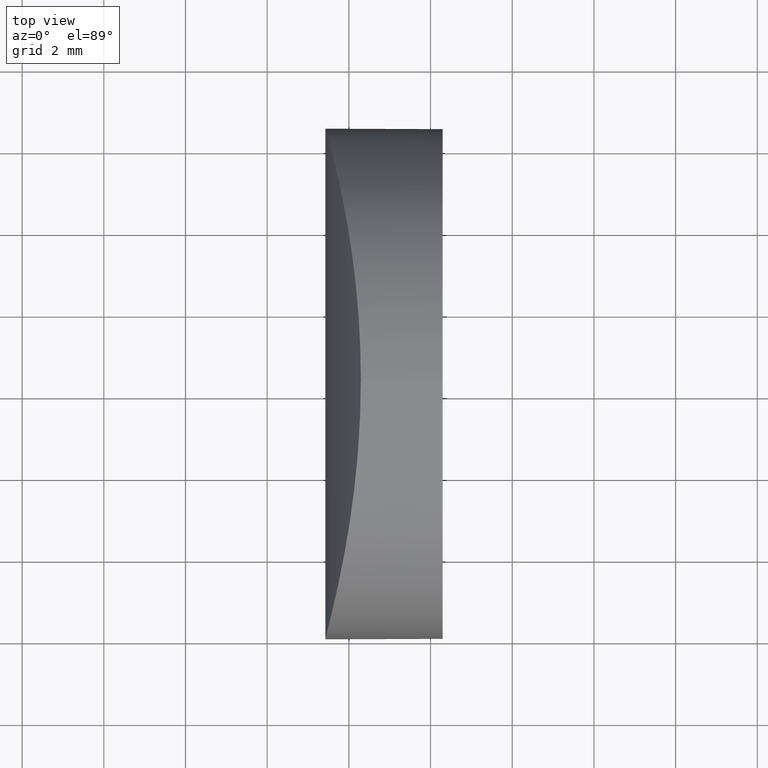
[diagram: clean part render]
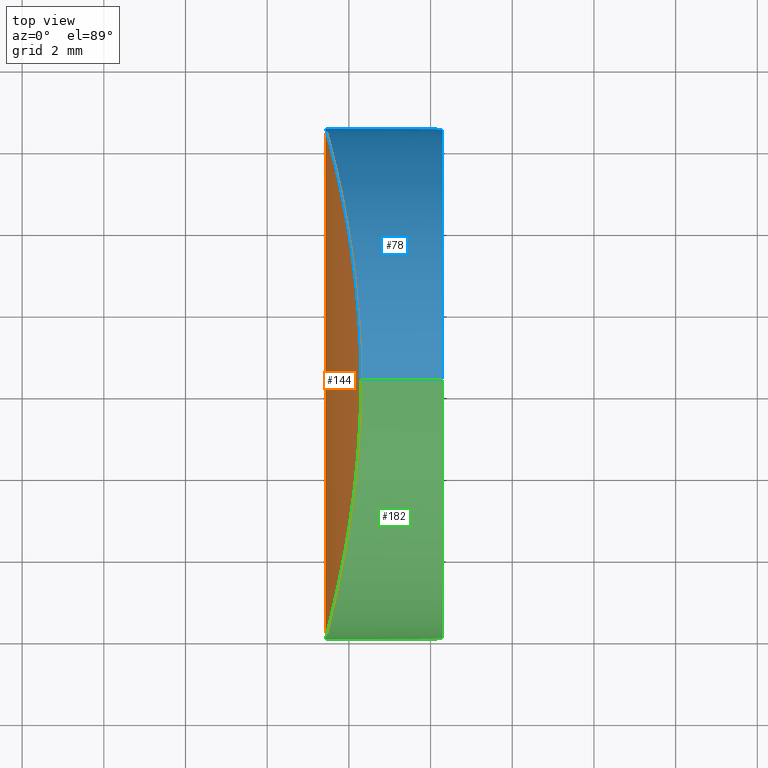
[diagram: same view with three faces highlighted in distinct colors, each labeled with its STEP entity id]
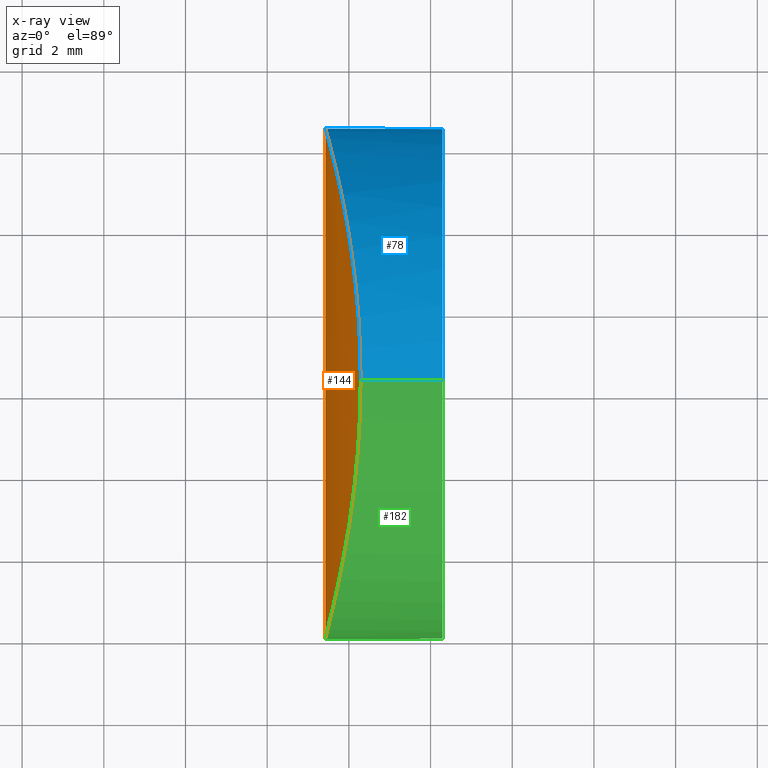
[diagram: x-ray of the same camera — body ghosted, the three highlighted faces saturated]
A machine part, top view with three faces highlighted in distinct colors.
The next image is the same camera in x-ray (body ghosted, the three faces saturated) — at least one of them is partly hidden behind the body in this view.
Their STEP definitions:

[orange] entity #144 — the highlighted cylindrical surface (partial cylindrical patch) has radius 22.93 mm, axis along (-0, -1, -0).
#1 = CARTESIAN_POINT ( 'NONE',  ( -18.20133006905662000, 10.95009780847321900, 4.124730403592017100 ) ) ;
#3 = CARTESIAN_POINT ( 'NONE',  ( -18.40891683051961500, 11.86299368340000300, -2.778872419111120300 ) ) ;
#4 = CARTESIAN_POINT ( 'NONE',  ( -17.75202215429834100, 4.818976478126216100, -6.087463154470602200 ) ) ;
#5 = CARTESIAN_POINT ( 'NONE',  ( -17.71827818553345700, 7.072273054197086000, -6.209117825791605800 ) ) ;
#7 = CARTESIAN_POINT ( 'NONE',  ( -18.57478787720902600, 2.857239324197803000E-005, 0.4151895861862338600 ) ) ;
#15 = CARTESIAN_POINT ( 'NONE',  ( -17.92563604326127100, 9.384558899289801900, -5.422464547221747600 ) ) ;
#18 = CARTESIAN_POINT ( 'NONE',  ( -18.51748007760547300, 12.28660832705903000, -1.632134371557496300 ) ) ;
#19 = CARTESIAN_POINT ( 'NONE',  ( -17.75151794503539500, 4.827065939892804600, 6.089289642798375400 ) ) ;
#22 = CARTESIAN_POINT ( 'NONE',  ( -18.25684415268590800, 11.20967860826354300, 3.808662286717492400 ) ) ;
#23 = DIRECTION ( 'NONE',  ( 0.0000000000000000000, 0.0000000000000000000, -1.000000000000000000 ) ) ;
#24 = CARTESIAN_POINT ( 'NONE',  ( -17.76522132626254400, 7.871500529980274900, -6.039495593501661700 ) ) ;
#26 = CARTESIAN_POINT ( 'NONE',  ( -17.70658163093128900, 5.835192807067590700, -6.250000000000002700 ) ) ;
#27 = CARTESIAN_POINT ( 'NONE',  ( -17.70658163093128200, 6.664807192572944000, -6.250000000000000900 ) ) ;
#32 = CARTESIAN_POINT ( 'NONE',  ( -18.51744880209323100, 0.2135100843477229200, 1.632570613190364600 ) ) ;
#34 = CARTESIAN_POINT ( 'NONE',  ( -18.08818377686607800, 2.125990214488198100, 4.700727922411143600 ) ) ;
#37 = CARTESIAN_POINT ( 'NONE',  ( -17.70658163093128600, 6.250000000000000900, 6.250000000000000000 ) ) ;
#38 = CARTESIAN_POINT ( 'NONE',  ( -17.79753469854707900, 8.264914197109819200, -5.919872614418112600 ) ) ;
#41 = CARTESIAN_POINT ( 'NONE',  ( -17.81679349157646900, 4.034175357108001200, -5.847558018510195400 ) ) ;
#43 = CARTESIAN_POINT ( 'NONE',  ( -18.48609466164993300, 0.3334225411677921300, 2.024502033207922200 ) ) ;
#44 = CARTESIAN_POINT ( 'NONE',  ( -17.81618034062731900, 4.040214221451774000, 5.849887174370714100 ) ) ;
#46 = CARTESIAN_POINT ( 'NONE',  ( -18.40923806060087000, 0.6356858768039392900, -2.776585817879675800 ) ) ;
#47 = CARTESIAN_POINT ( 'NONE',  ( -17.81619185522884100, 8.459901985888020400, -5.849843649655709600 ) ) ;
#49 = CARTESIAN_POINT ( 'NONE',  ( -17.87744075296714600, 9.026533572609526600, -5.614330892525699400 ) ) ;
#50 = CARTESIAN_POINT ( 'NONE',  ( -17.87773705394244000, 9.028567129950822300, 5.613136494291686600 ) ) ;
#51 = CARTESIAN_POINT ( 'NONE',  ( -17.70658163093128600, 6.250000000000000000, -6.250000000000000000 ) ) ;
#53 = CYLINDRICAL_SURFACE ( 'NONE', #108, 22.93000000000000000 ) ;
#54 = CARTESIAN_POINT ( 'NONE',  ( -18.56355380238791900, 12.45910645876874200, 0.8223760559567512300 ) ) ;
#55 = CARTESIAN_POINT ( 'NONE',  ( -18.25680156598767900, 11.21285324527474900, -3.821135945645483200 ) ) ;
#57 = CARTESIAN_POINT ( 'NONE',  ( -18.46822088172625700, 0.4026021886066608000, 2.216250579991819100 ) ) ;
#58 = CARTESIAN_POINT ( 'NONE',  ( -18.36146666120679100, 0.8301988547194637500, 3.139542360204102200 ) ) ;
#60 = CARTESIAN_POINT ( 'NONE',  ( -18.48692934240068600, 12.16979773005003200, 2.015137080833230100 ) ) ;
#62 = CARTESIAN_POINT ( 'NONE',  ( -18.57479776283711100, 12.50000769599910400, -0.4146683040450683300 ) ) ;
#65 = CARTESIAN_POINT ( 'NONE',  ( -18.56357181610908900, 0.04082736067890616000, -0.8218870474293426000 ) ) ;
#66 = CARTESIAN_POINT ( 'NONE',  ( -18.11643593472269100, 1.975427228381730200, 4.564164347987311700 ) ) ;
#67 = CARTESIAN_POINT ( 'NONE',  ( -18.20087581141212100, 1.545387851953418300, 4.134416384164458300 ) ) ;
#69 = CARTESIAN_POINT ( 'NONE',  ( -18.51823056646880500, 12.28945017532101100, 1.621673271368059300 ) ) ;
#71 = CARTESIAN_POINT ( 'NONE',  ( -17.92623094155776200, 3.110997441870714000, -5.420107932171202200 ) ) ;
#74 = CARTESIAN_POINT ( 'NONE',  ( -17.71828365066696200, 7.074327345588622000, 6.209115025353400000 ) ) ;
#75 = CARTESIAN_POINT ( 'NONE',  ( -17.79752502293172300, 4.235193165958546200, 5.919908750138512600 ) ) ;
#77 = CARTESIAN_POINT ( 'NONE',  ( -18.25688641817738400, 1.290128696190620400, -3.808412022998032900 ) ) ;
#80 = CARTESIAN_POINT ( 'NONE',  ( -18.51826147653924100, 0.2104328619025868700, -1.621238825203360500 ) ) ;
#84 = CARTESIAN_POINT ( 'NONE',  ( -17.92561439324460400, 3.115596240773763200, 5.422552463655933700 ) ) ;
#86 = EDGE_LOOP ( 'NONE', ( #207, #109 ) ) ;
#87 = CARTESIAN_POINT ( 'NONE',  ( -17.76601603492646600, 4.617785892227527900, -6.036585419277390200 ) ) ;
#89 = FACE_OUTER_BOUND ( 'NONE', #86, .T. ) ;
#90 = CARTESIAN_POINT ( 'NONE',  ( -18.08876899490530500, 2.116177090214940800, -4.705138260891670800 ) ) ;
#95 = CARTESIAN_POINT ( 'NONE',  ( -18.57479356687372300, 12.49999230184867300, 0.4149002642321580900 ) ) ;
#96 = CARTESIAN_POINT ( 'NONE',  ( -17.70658163093128600, 6.250000000000000900, 6.250000000000000000 ) ) ;
#97 = CARTESIAN_POINT ( 'NONE',  ( -18.20137006764563700, 1.549710232067975200, -4.124512284469672900 ) ) ;
#98 = CARTESIAN_POINT ( 'NONE',  ( -18.03226848574230000, 2.442018110516090500, 4.960198951745326200 ) ) ;
#99 = CARTESIAN_POINT ( 'NONE',  ( -17.87742344738788000, 3.473607171219882600, 5.614398936668305100 ) ) ;
#101 = CARTESIAN_POINT ( 'NONE',  ( -17.81678206190612100, 8.465709570887323600, 5.847601238736817900 ) ) ;
#106 = CARTESIAN_POINT ( 'NONE',  ( -17.70658163093127900, 6.664784427872269200, 6.249999999999998200 ) ) ;
#108 = AXIS2_PLACEMENT_3D ( 'NONE', #220, #116, #23 ) ;
#109 = ORIENTED_EDGE ( 'NONE', *, *, #158, .F. ) ;
#111 = CARTESIAN_POINT ( 'NONE',  ( -17.75201724247764200, 7.680946120782801100, 6.087480960307414300 ) ) ;
#112 = CARTESIAN_POINT ( 'NONE',  ( -17.76521504225128100, 4.628586419751767000, 6.039518539606720400 ) ) ;
#113 = CARTESIAN_POINT ( 'NONE',  ( -17.70658163093128600, 6.250000000000000000, -6.250000000000000000 ) ) ;
#114 = CARTESIAN_POINT ( 'NONE',  ( -18.11647155514381800, 10.52476006713869200, -4.563989408022107100 ) ) ;
#116 = DIRECTION ( 'NONE',  ( -0.0000000000000000000, -1.000000000000000000, -0.0000000000000000000 ) ) ;
#117 = CARTESIAN_POINT ( 'NONE',  ( -18.36210213607549200, 0.8276171845088350400, -3.134710385920152400 ) ) ;
#119 = CARTESIAN_POINT ( 'NONE',  ( -18.56355620723643400, 12.45912956272943900, -0.8242373185279284800 ) ) ;
#121 = CARTESIAN_POINT ( 'NONE',  ( -18.28416195698516200, 11.33238746971648100, 3.643263586837380200 ) ) ;
#122 = EDGE_CURVE ( 'NONE', #167, #206, #123, .T. ) ;
#123 = B_SPLINE_CURVE_WITH_KNOTS ( 'NONE', 3,
 ( #51, #27, #5, #172, #24, #38, #47, #49, #15, #201, #218, #204, #114, #159, #55, #166, #3, #217, #208, #18, #214, #119, #62, #95, #54, #192, #69, #60, #191, #151, #210, #121, #22, #1, #133, #129, #174, #202, #50, #101, #188, #190, #111, #74, #106, #37 ),
 .UNSPECIFIED., .F., .F.,
 ( 4, 2, 2, 2, 2, 2, 2, 2, 2, 2, 2, 2, 2, 2, 2, 2, 2, 2, 2, 2, 2, 2, 4 ),
 ( -0.009810024878258253100, -0.008583757481695181200, -0.007970623783413642600, -0.007357490085132105700, -0.006131222688569025100, -0.005518088990287483100, -0.004904955292005940200, -0.003678687895442855200, -0.002452420498879769400, -0.001839286800598227300, -0.001226153102316685300, 1.142942464005258800E-007, 0.001226381690809486300, 0.001839515389091028400, 0.002452649087372570400, 0.003678916483935659700, 0.004292050182217205200, 0.004905183880498752500, 0.006131451277061847000, 0.007357718673624945000, 0.007970852371906490500, 0.008583986070188039500, 0.009810253466751137400 ),
 .UNSPECIFIED. ) ;
#125 = CARTESIAN_POINT ( 'NONE',  ( -17.70658163093128600, 6.250000000000000000, -6.250000000000000000 ) ) ;
#126 = CARTESIAN_POINT ( 'NONE',  ( -17.71828493593997300, 5.425627694467236100, -6.209110581286458900 ) ) ;
#127 = B_SPLINE_CURVE_WITH_KNOTS ( 'NONE', 3,
 ( #156, #194, #223, #19, #112, #75, #44, #99, #84, #145, #98, #34, #66, #67, #135, #58, #147, #57, #43, #32, #187, #173, #7, #189, #65, #209, #80, #203, #163, #46, #117, #199, #77, #97, #224, #90, #197, #71, #170, #41, #213, #87, #4, #126, #26, #125 ),
 .UNSPECIFIED., .F., .F.,
 ( 4, 2, 2, 2, 2, 2, 2, 2, 2, 2, 2, 2, 2, 2, 2, 2, 2, 2, 2, 2, 2, 2, 4 ),
 ( 0.009810253466751137400, 0.01103652086437689700, 0.01164965456318977800, 0.01226278826200265900, 0.01348905565962842100, 0.01410218935844130400, 0.01471532305725418600, 0.01594159045487995500, 0.01716785785250572400, 0.01778099155131860500, 0.01839412525013148900, 0.01962039264775725800, 0.02084666004538302300, 0.02145979374419590400, 0.02207292744300878900, 0.02329919484063455700, 0.02391232853944744200, 0.02452546223826031900, 0.02575172963588608100, 0.02697799703351184300, 0.02759113073232472700, 0.02820426443113761100, 0.02943053182876336600 ),
 .UNSPECIFIED. ) ;
#129 = CARTESIAN_POINT ( 'NONE',  ( -18.08873500958767300, 10.38363815409748300, 4.705298599819619700 ) ) ;
#133 = CARTESIAN_POINT ( 'NONE',  ( -18.17317964095373700, 10.81348795707259700, 4.275295602794284600 ) ) ;
#135 = CARTESIAN_POINT ( 'NONE',  ( -18.25675939377368500, 1.287338720415304400, 3.821382434409168900 ) ) ;
#144 = ADVANCED_FACE ( 'NONE', ( #89 ), #53, .T. ) ;
#145 = CARTESIAN_POINT ( 'NONE',  ( -18.00464513088623200, 2.607409017836726800, 5.082867937828107000 ) ) ;
#147 = CARTESIAN_POINT ( 'NONE',  ( -18.40887488940168400, 0.6371760120249231300, 2.779211771711236800 ) ) ;
#151 = CARTESIAN_POINT ( 'NONE',  ( -18.40919610281196800, 11.86414438284411000, 2.776925226379630500 ) ) ;
#156 = CARTESIAN_POINT ( 'NONE',  ( -17.70658163093128600, 6.250000000000000900, 6.250000000000000000 ) ) ;
#158 = EDGE_CURVE ( 'NONE', #206, #167, #127, .T. ) ;
#159 = CARTESIAN_POINT ( 'NONE',  ( -18.20091579258821200, 10.95480398209626900, -4.134200198662068900 ) ) ;
#163 = CARTESIAN_POINT ( 'NONE',  ( -18.46885900430649100, 0.4001078057454500200, -2.209779238994702900 ) ) ;
#166 = CARTESIAN_POINT ( 'NONE',  ( -18.36151068609249400, 11.66998549973434700, -3.139227521526200000 ) ) ;
#167 = VERTEX_POINT ( 'NONE', #113 ) ;
#170 = CARTESIAN_POINT ( 'NONE',  ( -17.87775434092999300, 3.471292312832964000, -5.613068510257131800 ) ) ;
#172 = CARTESIAN_POINT ( 'NONE',  ( -17.75152277628786700, 7.673010599347755100, -6.089272133982794000 ) ) ;
#173 = CARTESIAN_POINT ( 'NONE',  ( -18.56353804278581200, 0.04093715960550153900, 0.8247295953428700500 ) ) ;
#174 = CARTESIAN_POINT ( 'NONE',  ( -18.03242420882025200, 10.07058698006701100, 4.963265610994306500 ) ) ;
#187 = CARTESIAN_POINT ( 'NONE',  ( -18.53097261008234800, 0.1626177669971676500, 1.431367393324302100 ) ) ;
#188 = CARTESIAN_POINT ( 'NONE',  ( -17.79836945753122600, 8.273996147329000900, 5.916749241461116200 ) ) ;
#189 = CARTESIAN_POINT ( 'NONE',  ( -18.57480344501225400, -2.854276331569016500E-005, -0.4143289188823507900 ) ) ;
#190 = CARTESIAN_POINT ( 'NONE',  ( -17.76600966632487700, 7.882126684941343200, 6.036608689904928000 ) ) ;
#191 = CARTESIAN_POINT ( 'NONE',  ( -18.46882108249602400, 12.09974432928478500, 2.210169450083278700 ) ) ;
#192 = CARTESIAN_POINT ( 'NONE',  ( -18.53146710636160700, 12.33923737210111500, 1.423161823068898700 ) ) ;
#194 = CARTESIAN_POINT ( 'NONE',  ( -17.70658163093128600, 5.835215571768284100, 6.250000000000000000 ) ) ;
#197 = CARTESIAN_POINT ( 'NONE',  ( -18.03245442185453500, 2.429235195691423300, -4.963130399907323700 ) ) ;
#199 = CARTESIAN_POINT ( 'NONE',  ( -18.28420459992359800, 1.167422657559016500, -3.642999273735577900 ) ) ;
#201 = CARTESIAN_POINT ( 'NONE',  ( -18.00467334295568400, 9.892764424312463900, -5.082744107636337100 ) ) ;
#202 = CARTESIAN_POINT ( 'NONE',  ( -17.92620868819942700, 9.388843635260395000, 5.420198430954498800 ) ) ;
#203 = CARTESIAN_POINT ( 'NONE',  ( -18.48696542456861300, 0.3300631499236464900, -2.014729320539365300 ) ) ;
#204 = CARTESIAN_POINT ( 'NONE',  ( -18.08821776129643800, 10.37419482949168900, -4.700566014745422900 ) ) ;
#206 = VERTEX_POINT ( 'NONE', #96 ) ;
#207 = ORIENTED_EDGE ( 'NONE', *, *, #122, .F. ) ;
#208 = CARTESIAN_POINT ( 'NONE',  ( -18.48613049018272000, 12.16671568116867200, -2.024099367459633900 ) ) ;
#209 = CARTESIAN_POINT ( 'NONE',  ( -18.53149507477191800, 0.1606575873734736600, -1.422713877662763700 ) ) ;
#210 = CARTESIAN_POINT ( 'NONE',  ( -18.36205916571207200, 11.67220307067097300, 3.135018609582943800 ) ) ;
#213 = CARTESIAN_POINT ( 'NONE',  ( -17.79837907362825800, 4.225897709649576200, -5.916713305209405000 ) ) ;
#214 = CARTESIAN_POINT ( 'NONE',  ( -18.53100105351624200, 12.33748908531615700, -1.430914360526293900 ) ) ;
#217 = CARTESIAN_POINT ( 'NONE',  ( -18.46825853428829900, 12.09754467734474100, -2.215864108954648200 ) ) ;
#218 = CARTESIAN_POINT ( 'NONE',  ( -18.03229894558044300, 10.05816107026674000, -4.960061805410348700 ) ) ;
#220 = CARTESIAN_POINT ( 'NONE',  ( 4.355204334851265500, 12.50000000000000000, 4.286263797015675000E-017 ) ) ;
#223 = CARTESIAN_POINT ( 'NONE',  ( -17.71827690167667400, 5.427771675960154400, 6.209122269400528400 ) ) ;
#224 = CARTESIAN_POINT ( 'NONE',  ( -18.17321826428303000, 1.686321323663886300, -4.275092562161392900 ) ) ;

[blue] entity #78 — the highlighted cylindrical surface (partial cylindrical patch) has radius 6.25 mm, axis along (1, -0, -0).
#1 = CARTESIAN_POINT ( 'NONE',  ( -18.20133006905662000, 10.95009780847321900, 4.124730403592017100 ) ) ;
#3 = CARTESIAN_POINT ( 'NONE',  ( -18.40891683051961500, 11.86299368340000300, -2.778872419111120300 ) ) ;
#5 = CARTESIAN_POINT ( 'NONE',  ( -17.71827818553345700, 7.072273054197086000, -6.209117825791605800 ) ) ;
#9 = DIRECTION ( 'NONE',  ( 1.000000000000000000, -0.0000000000000000000, -2.775557561562888400E-016 ) ) ;
#12 = DIRECTION ( 'NONE',  ( 1.000000000000000000, 0.0000000000000000000, -2.497546408665961600E-016 ) ) ;
#15 = CARTESIAN_POINT ( 'NONE',  ( -17.92563604326127100, 9.384558899289801900, -5.422464547221747600 ) ) ;
#16 = DIRECTION ( 'NONE',  ( 1.000000000000000000, -0.0000000000000000000, -2.775557561562888400E-016 ) ) ;
#18 = CARTESIAN_POINT ( 'NONE',  ( -18.51748007760547300, 12.28660832705903000, -1.632134371557496300 ) ) ;
#21 = CARTESIAN_POINT ( 'NONE',  ( -15.70479566514873900, 6.250000000000000900, 6.249999999999999100 ) ) ;
#22 = CARTESIAN_POINT ( 'NONE',  ( -18.25684415268590800, 11.20967860826354300, 3.808662286717492400 ) ) ;
#24 = CARTESIAN_POINT ( 'NONE',  ( -17.76522132626254400, 7.871500529980274900, -6.039495593501661700 ) ) ;
#25 = CARTESIAN_POINT ( 'NONE',  ( -28.40479566514874000, 6.250000000000000900, 6.250000000000002700 ) ) ;
#27 = CARTESIAN_POINT ( 'NONE',  ( -17.70658163093128200, 6.664807192572944000, -6.250000000000000900 ) ) ;
#29 = VERTEX_POINT ( 'NONE', #107 ) ;
#30 = CYLINDRICAL_SURFACE ( 'NONE', #59, 6.250000000000000000 ) ;
#37 = CARTESIAN_POINT ( 'NONE',  ( -17.70658163093128600, 6.250000000000000900, 6.250000000000000000 ) ) ;
#38 = CARTESIAN_POINT ( 'NONE',  ( -17.79753469854707900, 8.264914197109819200, -5.919872614418112600 ) ) ;
#47 = CARTESIAN_POINT ( 'NONE',  ( -17.81619185522884100, 8.459901985888020400, -5.849843649655709600 ) ) ;
#48 = EDGE_CURVE ( 'NONE', #29, #124, #94, .T. ) ;
#49 = CARTESIAN_POINT ( 'NONE',  ( -17.87744075296714600, 9.026533572609526600, -5.614330892525699400 ) ) ;
#50 = CARTESIAN_POINT ( 'NONE',  ( -17.87773705394244000, 9.028567129950822300, 5.613136494291686600 ) ) ;
#51 = CARTESIAN_POINT ( 'NONE',  ( -17.70658163093128600, 6.250000000000000000, -6.250000000000000000 ) ) ;
#52 = EDGE_CURVE ( 'NONE', #206, #124, #56, .T. ) ;
#54 = CARTESIAN_POINT ( 'NONE',  ( -18.56355380238791900, 12.45910645876874200, 0.8223760559567512300 ) ) ;
#55 = CARTESIAN_POINT ( 'NONE',  ( -18.25680156598767900, 11.21285324527474900, -3.821135945645483200 ) ) ;
#56 = LINE ( 'NONE', #25, #76 ) ;
#59 = AXIS2_PLACEMENT_3D ( 'NONE', #82, #120, #137 ) ;
#60 = CARTESIAN_POINT ( 'NONE',  ( -18.48692934240068600, 12.16979773005003200, 2.015137080833230100 ) ) ;
#62 = CARTESIAN_POINT ( 'NONE',  ( -18.57479776283711100, 12.50000769599910400, -0.4146683040450683300 ) ) ;
#69 = CARTESIAN_POINT ( 'NONE',  ( -18.51823056646880500, 12.28945017532101100, 1.621673271368059300 ) ) ;
#72 = CARTESIAN_POINT ( 'NONE',  ( -15.70479566514873900, 6.250000000000000000, -8.452139918100487000E-016 ) ) ;
#74 = CARTESIAN_POINT ( 'NONE',  ( -17.71828365066696200, 7.074327345588622000, 6.209115025353400000 ) ) ;
#76 = VECTOR ( 'NONE', #16, 1000.000000000000000 ) ;
#78 = ADVANCED_FACE ( 'NONE', ( #179 ), #30, .T. ) ;
#79 = ORIENTED_EDGE ( 'NONE', *, *, #152, .F. ) ;
#82 = CARTESIAN_POINT ( 'NONE',  ( -28.40479566514874000, 6.250000000000000000, 2.679744111374819400E-015 ) ) ;
#93 = ORIENTED_EDGE ( 'NONE', *, *, #48, .F. ) ;
#94 = CIRCLE ( 'NONE', #164, 6.250000000000000000 ) ;
#95 = CARTESIAN_POINT ( 'NONE',  ( -18.57479356687372300, 12.49999230184867300, 0.4149002642321580900 ) ) ;
#96 = CARTESIAN_POINT ( 'NONE',  ( -17.70658163093128600, 6.250000000000000900, 6.250000000000000000 ) ) ;
#101 = CARTESIAN_POINT ( 'NONE',  ( -17.81678206190612100, 8.465709570887323600, 5.847601238736817900 ) ) ;
#104 = ORIENTED_EDGE ( 'NONE', *, *, #122, .T. ) ;
#106 = CARTESIAN_POINT ( 'NONE',  ( -17.70658163093127900, 6.664784427872269200, 6.249999999999998200 ) ) ;
#107 = CARTESIAN_POINT ( 'NONE',  ( -15.70479566514873900, 6.250000000000000000, -6.250000000000000900 ) ) ;
#111 = CARTESIAN_POINT ( 'NONE',  ( -17.75201724247764200, 7.680946120782801100, 6.087480960307414300 ) ) ;
#113 = CARTESIAN_POINT ( 'NONE',  ( -17.70658163093128600, 6.250000000000000000, -6.250000000000000000 ) ) ;
#114 = CARTESIAN_POINT ( 'NONE',  ( -18.11647155514381800, 10.52476006713869200, -4.563989408022107100 ) ) ;
#119 = CARTESIAN_POINT ( 'NONE',  ( -18.56355620723643400, 12.45912956272943900, -0.8242373185279284800 ) ) ;
#120 = DIRECTION ( 'NONE',  ( 1.000000000000000000, -0.0000000000000000000, -2.775557561562888400E-016 ) ) ;
#121 = CARTESIAN_POINT ( 'NONE',  ( -18.28416195698516200, 11.33238746971648100, 3.643263586837380200 ) ) ;
#122 = EDGE_CURVE ( 'NONE', #167, #206, #123, .T. ) ;
#123 = B_SPLINE_CURVE_WITH_KNOTS ( 'NONE', 3,
 ( #51, #27, #5, #172, #24, #38, #47, #49, #15, #201, #218, #204, #114, #159, #55, #166, #3, #217, #208, #18, #214, #119, #62, #95, #54, #192, #69, #60, #191, #151, #210, #121, #22, #1, #133, #129, #174, #202, #50, #101, #188, #190, #111, #74, #106, #37 ),
 .UNSPECIFIED., .F., .F.,
 ( 4, 2, 2, 2, 2, 2, 2, 2, 2, 2, 2, 2, 2, 2, 2, 2, 2, 2, 2, 2, 2, 2, 4 ),
 ( -0.009810024878258253100, -0.008583757481695181200, -0.007970623783413642600, -0.007357490085132105700, -0.006131222688569025100, -0.005518088990287483100, -0.004904955292005940200, -0.003678687895442855200, -0.002452420498879769400, -0.001839286800598227300, -0.001226153102316685300, 1.142942464005258800E-007, 0.001226381690809486300, 0.001839515389091028400, 0.002452649087372570400, 0.003678916483935659700, 0.004292050182217205200, 0.004905183880498752500, 0.006131451277061847000, 0.007357718673624945000, 0.007970852371906490500, 0.008583986070188039500, 0.009810253466751137400 ),
 .UNSPECIFIED. ) ;
#124 = VERTEX_POINT ( 'NONE', #21 ) ;
#129 = CARTESIAN_POINT ( 'NONE',  ( -18.08873500958767300, 10.38363815409748300, 4.705298599819619700 ) ) ;
#131 = EDGE_LOOP ( 'NONE', ( #104, #215, #93, #79 ) ) ;
#133 = CARTESIAN_POINT ( 'NONE',  ( -18.17317964095373700, 10.81348795707259700, 4.275295602794284600 ) ) ;
#137 = DIRECTION ( 'NONE',  ( 0.0000000000000000000, 0.0000000000000000000, -1.000000000000000000 ) ) ;
#142 = CARTESIAN_POINT ( 'NONE',  ( -28.40479566514874000, 6.250000000000000000, -6.249999999999997300 ) ) ;
#151 = CARTESIAN_POINT ( 'NONE',  ( -18.40919610281196800, 11.86414438284411000, 2.776925226379630500 ) ) ;
#152 = EDGE_CURVE ( 'NONE', #167, #29, #219, .T. ) ;
#155 = DIRECTION ( 'NONE',  ( 0.0000000000000000000, 0.0000000000000000000, -1.000000000000000000 ) ) ;
#159 = CARTESIAN_POINT ( 'NONE',  ( -18.20091579258821200, 10.95480398209626900, -4.134200198662068900 ) ) ;
#164 = AXIS2_PLACEMENT_3D ( 'NONE', #72, #12, #155 ) ;
#166 = CARTESIAN_POINT ( 'NONE',  ( -18.36151068609249400, 11.66998549973434700, -3.139227521526200000 ) ) ;
#167 = VERTEX_POINT ( 'NONE', #113 ) ;
#172 = CARTESIAN_POINT ( 'NONE',  ( -17.75152277628786700, 7.673010599347755100, -6.089272133982794000 ) ) ;
#174 = CARTESIAN_POINT ( 'NONE',  ( -18.03242420882025200, 10.07058698006701100, 4.963265610994306500 ) ) ;
#178 = VECTOR ( 'NONE', #9, 1000.000000000000000 ) ;
#179 = FACE_OUTER_BOUND ( 'NONE', #131, .T. ) ;
#188 = CARTESIAN_POINT ( 'NONE',  ( -17.79836945753122600, 8.273996147329000900, 5.916749241461116200 ) ) ;
#190 = CARTESIAN_POINT ( 'NONE',  ( -17.76600966632487700, 7.882126684941343200, 6.036608689904928000 ) ) ;
#191 = CARTESIAN_POINT ( 'NONE',  ( -18.46882108249602400, 12.09974432928478500, 2.210169450083278700 ) ) ;
#192 = CARTESIAN_POINT ( 'NONE',  ( -18.53146710636160700, 12.33923737210111500, 1.423161823068898700 ) ) ;
#201 = CARTESIAN_POINT ( 'NONE',  ( -18.00467334295568400, 9.892764424312463900, -5.082744107636337100 ) ) ;
#202 = CARTESIAN_POINT ( 'NONE',  ( -17.92620868819942700, 9.388843635260395000, 5.420198430954498800 ) ) ;
#204 = CARTESIAN_POINT ( 'NONE',  ( -18.08821776129643800, 10.37419482949168900, -4.700566014745422900 ) ) ;
#206 = VERTEX_POINT ( 'NONE', #96 ) ;
#208 = CARTESIAN_POINT ( 'NONE',  ( -18.48613049018272000, 12.16671568116867200, -2.024099367459633900 ) ) ;
#210 = CARTESIAN_POINT ( 'NONE',  ( -18.36205916571207200, 11.67220307067097300, 3.135018609582943800 ) ) ;
#214 = CARTESIAN_POINT ( 'NONE',  ( -18.53100105351624200, 12.33748908531615700, -1.430914360526293900 ) ) ;
#215 = ORIENTED_EDGE ( 'NONE', *, *, #52, .T. ) ;
#217 = CARTESIAN_POINT ( 'NONE',  ( -18.46825853428829900, 12.09754467734474100, -2.215864108954648200 ) ) ;
#218 = CARTESIAN_POINT ( 'NONE',  ( -18.03229894558044300, 10.05816107026674000, -4.960061805410348700 ) ) ;
#219 = LINE ( 'NONE', #142, #178 ) ;

[green] entity #182 — the highlighted cylindrical surface (partial cylindrical patch) has radius 6.25 mm, axis along (1, -0, -0).
#4 = CARTESIAN_POINT ( 'NONE',  ( -17.75202215429834100, 4.818976478126216100, -6.087463154470602200 ) ) ;
#7 = CARTESIAN_POINT ( 'NONE',  ( -18.57478787720902600, 2.857239324197803000E-005, 0.4151895861862338600 ) ) ;
#9 = DIRECTION ( 'NONE',  ( 1.000000000000000000, -0.0000000000000000000, -2.775557561562888400E-016 ) ) ;
#16 = DIRECTION ( 'NONE',  ( 1.000000000000000000, -0.0000000000000000000, -2.775557561562888400E-016 ) ) ;
#19 = CARTESIAN_POINT ( 'NONE',  ( -17.75151794503539500, 4.827065939892804600, 6.089289642798375400 ) ) ;
#21 = CARTESIAN_POINT ( 'NONE',  ( -15.70479566514873900, 6.250000000000000900, 6.249999999999999100 ) ) ;
#25 = CARTESIAN_POINT ( 'NONE',  ( -28.40479566514874000, 6.250000000000000900, 6.250000000000002700 ) ) ;
#26 = CARTESIAN_POINT ( 'NONE',  ( -17.70658163093128900, 5.835192807067590700, -6.250000000000002700 ) ) ;
#28 = AXIS2_PLACEMENT_3D ( 'NONE', #128, #205, #165 ) ;
#29 = VERTEX_POINT ( 'NONE', #107 ) ;
#32 = CARTESIAN_POINT ( 'NONE',  ( -18.51744880209323100, 0.2135100843477229200, 1.632570613190364600 ) ) ;
#34 = CARTESIAN_POINT ( 'NONE',  ( -18.08818377686607800, 2.125990214488198100, 4.700727922411143600 ) ) ;
#35 = CYLINDRICAL_SURFACE ( 'NONE', #28, 6.250000000000000000 ) ;
#41 = CARTESIAN_POINT ( 'NONE',  ( -17.81679349157646900, 4.034175357108001200, -5.847558018510195400 ) ) ;
#43 = CARTESIAN_POINT ( 'NONE',  ( -18.48609466164993300, 0.3334225411677921300, 2.024502033207922200 ) ) ;
#44 = CARTESIAN_POINT ( 'NONE',  ( -17.81618034062731900, 4.040214221451774000, 5.849887174370714100 ) ) ;
#46 = CARTESIAN_POINT ( 'NONE',  ( -18.40923806060087000, 0.6356858768039392900, -2.776585817879675800 ) ) ;
#52 = EDGE_CURVE ( 'NONE', #206, #124, #56, .T. ) ;
#56 = LINE ( 'NONE', #25, #76 ) ;
#57 = CARTESIAN_POINT ( 'NONE',  ( -18.46822088172625700, 0.4026021886066608000, 2.216250579991819100 ) ) ;
#58 = CARTESIAN_POINT ( 'NONE',  ( -18.36146666120679100, 0.8301988547194637500, 3.139542360204102200 ) ) ;
#65 = CARTESIAN_POINT ( 'NONE',  ( -18.56357181610908900, 0.04082736067890616000, -0.8218870474293426000 ) ) ;
#66 = CARTESIAN_POINT ( 'NONE',  ( -18.11643593472269100, 1.975427228381730200, 4.564164347987311700 ) ) ;
#67 = CARTESIAN_POINT ( 'NONE',  ( -18.20087581141212100, 1.545387851953418300, 4.134416384164458300 ) ) ;
#71 = CARTESIAN_POINT ( 'NONE',  ( -17.92623094155776200, 3.110997441870714000, -5.420107932171202200 ) ) ;
#75 = CARTESIAN_POINT ( 'NONE',  ( -17.79752502293172300, 4.235193165958546200, 5.919908750138512600 ) ) ;
#76 = VECTOR ( 'NONE', #16, 1000.000000000000000 ) ;
#77 = CARTESIAN_POINT ( 'NONE',  ( -18.25688641817738400, 1.290128696190620400, -3.808412022998032900 ) ) ;
#80 = CARTESIAN_POINT ( 'NONE',  ( -18.51826147653924100, 0.2104328619025868700, -1.621238825203360500 ) ) ;
#81 = CARTESIAN_POINT ( 'NONE',  ( -15.70479566514873900, 6.250000000000000000, -8.452139918100487000E-016 ) ) ;
#84 = CARTESIAN_POINT ( 'NONE',  ( -17.92561439324460400, 3.115596240773763200, 5.422552463655933700 ) ) ;
#87 = CARTESIAN_POINT ( 'NONE',  ( -17.76601603492646600, 4.617785892227527900, -6.036585419277390200 ) ) ;
#90 = CARTESIAN_POINT ( 'NONE',  ( -18.08876899490530500, 2.116177090214940800, -4.705138260891670800 ) ) ;
#91 = EDGE_LOOP ( 'NONE', ( #211, #171, #102, #222 ) ) ;
#96 = CARTESIAN_POINT ( 'NONE',  ( -17.70658163093128600, 6.250000000000000900, 6.250000000000000000 ) ) ;
#97 = CARTESIAN_POINT ( 'NONE',  ( -18.20137006764563700, 1.549710232067975200, -4.124512284469672900 ) ) ;
#98 = CARTESIAN_POINT ( 'NONE',  ( -18.03226848574230000, 2.442018110516090500, 4.960198951745326200 ) ) ;
#99 = CARTESIAN_POINT ( 'NONE',  ( -17.87742344738788000, 3.473607171219882600, 5.614398936668305100 ) ) ;
#102 = ORIENTED_EDGE ( 'NONE', *, *, #152, .T. ) ;
#107 = CARTESIAN_POINT ( 'NONE',  ( -15.70479566514873900, 6.250000000000000000, -6.250000000000000900 ) ) ;
#110 = CIRCLE ( 'NONE', #176, 6.250000000000000000 ) ;
#112 = CARTESIAN_POINT ( 'NONE',  ( -17.76521504225128100, 4.628586419751767000, 6.039518539606720400 ) ) ;
#113 = CARTESIAN_POINT ( 'NONE',  ( -17.70658163093128600, 6.250000000000000000, -6.250000000000000000 ) ) ;
#117 = CARTESIAN_POINT ( 'NONE',  ( -18.36210213607549200, 0.8276171845088350400, -3.134710385920152400 ) ) ;
#124 = VERTEX_POINT ( 'NONE', #21 ) ;
#125 = CARTESIAN_POINT ( 'NONE',  ( -17.70658163093128600, 6.250000000000000000, -6.250000000000000000 ) ) ;
#126 = CARTESIAN_POINT ( 'NONE',  ( -17.71828493593997300, 5.425627694467236100, -6.209110581286458900 ) ) ;
#127 = B_SPLINE_CURVE_WITH_KNOTS ( 'NONE', 3,
 ( #156, #194, #223, #19, #112, #75, #44, #99, #84, #145, #98, #34, #66, #67, #135, #58, #147, #57, #43, #32, #187, #173, #7, #189, #65, #209, #80, #203, #163, #46, #117, #199, #77, #97, #224, #90, #197, #71, #170, #41, #213, #87, #4, #126, #26, #125 ),
 .UNSPECIFIED., .F., .F.,
 ( 4, 2, 2, 2, 2, 2, 2, 2, 2, 2, 2, 2, 2, 2, 2, 2, 2, 2, 2, 2, 2, 2, 4 ),
 ( 0.009810253466751137400, 0.01103652086437689700, 0.01164965456318977800, 0.01226278826200265900, 0.01348905565962842100, 0.01410218935844130400, 0.01471532305725418600, 0.01594159045487995500, 0.01716785785250572400, 0.01778099155131860500, 0.01839412525013148900, 0.01962039264775725800, 0.02084666004538302300, 0.02145979374419590400, 0.02207292744300878900, 0.02329919484063455700, 0.02391232853944744200, 0.02452546223826031900, 0.02575172963588608100, 0.02697799703351184300, 0.02759113073232472700, 0.02820426443113761100, 0.02943053182876336600 ),
 .UNSPECIFIED. ) ;
#128 = CARTESIAN_POINT ( 'NONE',  ( -28.40479566514874000, 6.250000000000000000, 2.679744111374819400E-015 ) ) ;
#135 = CARTESIAN_POINT ( 'NONE',  ( -18.25675939377368500, 1.287338720415304400, 3.821382434409168900 ) ) ;
#142 = CARTESIAN_POINT ( 'NONE',  ( -28.40479566514874000, 6.250000000000000000, -6.249999999999997300 ) ) ;
#145 = CARTESIAN_POINT ( 'NONE',  ( -18.00464513088623200, 2.607409017836726800, 5.082867937828107000 ) ) ;
#147 = CARTESIAN_POINT ( 'NONE',  ( -18.40887488940168400, 0.6371760120249231300, 2.779211771711236800 ) ) ;
#150 = DIRECTION ( 'NONE',  ( 0.0000000000000000000, 0.0000000000000000000, -1.000000000000000000 ) ) ;
#152 = EDGE_CURVE ( 'NONE', #167, #29, #219, .T. ) ;
#156 = CARTESIAN_POINT ( 'NONE',  ( -17.70658163093128600, 6.250000000000000900, 6.250000000000000000 ) ) ;
#158 = EDGE_CURVE ( 'NONE', #206, #167, #127, .T. ) ;
#162 = DIRECTION ( 'NONE',  ( 1.000000000000000000, 0.0000000000000000000, -2.497546408665961600E-016 ) ) ;
#163 = CARTESIAN_POINT ( 'NONE',  ( -18.46885900430649100, 0.4001078057454500200, -2.209779238994702900 ) ) ;
#165 = DIRECTION ( 'NONE',  ( 0.0000000000000000000, 0.0000000000000000000, -1.000000000000000000 ) ) ;
#167 = VERTEX_POINT ( 'NONE', #113 ) ;
#169 = EDGE_CURVE ( 'NONE', #124, #29, #110, .T. ) ;
#170 = CARTESIAN_POINT ( 'NONE',  ( -17.87775434092999300, 3.471292312832964000, -5.613068510257131800 ) ) ;
#171 = ORIENTED_EDGE ( 'NONE', *, *, #158, .T. ) ;
#173 = CARTESIAN_POINT ( 'NONE',  ( -18.56353804278581200, 0.04093715960550153900, 0.8247295953428700500 ) ) ;
#176 = AXIS2_PLACEMENT_3D ( 'NONE', #81, #162, #150 ) ;
#178 = VECTOR ( 'NONE', #9, 1000.000000000000000 ) ;
#182 = ADVANCED_FACE ( 'NONE', ( #196 ), #35, .T. ) ;
#187 = CARTESIAN_POINT ( 'NONE',  ( -18.53097261008234800, 0.1626177669971676500, 1.431367393324302100 ) ) ;
#189 = CARTESIAN_POINT ( 'NONE',  ( -18.57480344501225400, -2.854276331569016500E-005, -0.4143289188823507900 ) ) ;
#194 = CARTESIAN_POINT ( 'NONE',  ( -17.70658163093128600, 5.835215571768284100, 6.250000000000000000 ) ) ;
#196 = FACE_OUTER_BOUND ( 'NONE', #91, .T. ) ;
#197 = CARTESIAN_POINT ( 'NONE',  ( -18.03245442185453500, 2.429235195691423300, -4.963130399907323700 ) ) ;
#199 = CARTESIAN_POINT ( 'NONE',  ( -18.28420459992359800, 1.167422657559016500, -3.642999273735577900 ) ) ;
#203 = CARTESIAN_POINT ( 'NONE',  ( -18.48696542456861300, 0.3300631499236464900, -2.014729320539365300 ) ) ;
#205 = DIRECTION ( 'NONE',  ( 1.000000000000000000, -0.0000000000000000000, -2.775557561562888400E-016 ) ) ;
#206 = VERTEX_POINT ( 'NONE', #96 ) ;
#209 = CARTESIAN_POINT ( 'NONE',  ( -18.53149507477191800, 0.1606575873734736600, -1.422713877662763700 ) ) ;
#211 = ORIENTED_EDGE ( 'NONE', *, *, #52, .F. ) ;
#213 = CARTESIAN_POINT ( 'NONE',  ( -17.79837907362825800, 4.225897709649576200, -5.916713305209405000 ) ) ;
#219 = LINE ( 'NONE', #142, #178 ) ;
#222 = ORIENTED_EDGE ( 'NONE', *, *, #169, .F. ) ;
#223 = CARTESIAN_POINT ( 'NONE',  ( -17.71827690167667400, 5.427771675960154400, 6.209122269400528400 ) ) ;
#224 = CARTESIAN_POINT ( 'NONE',  ( -18.17321826428303000, 1.686321323663886300, -4.275092562161392900 ) ) ;